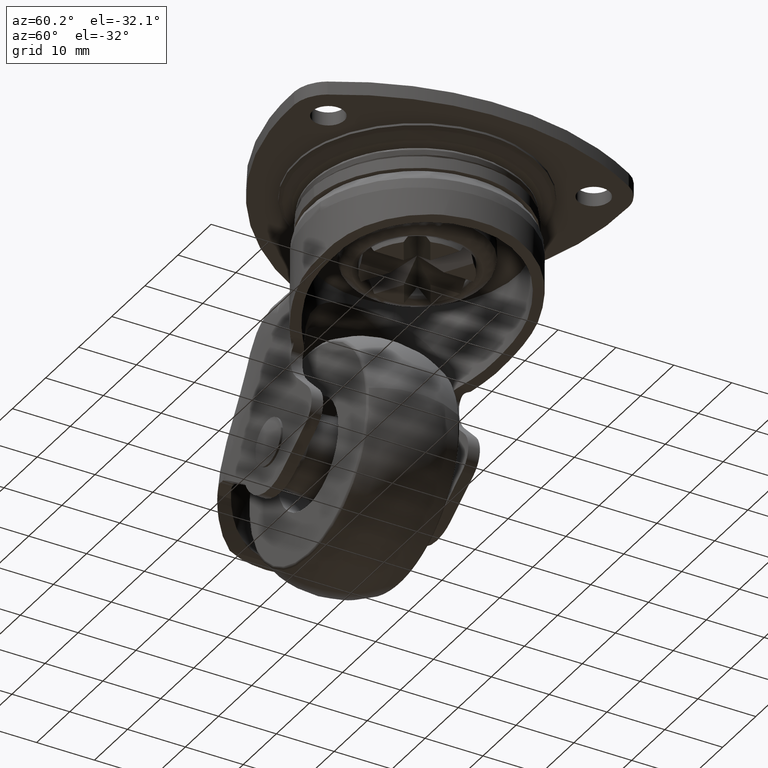
[diagram: clean part render]
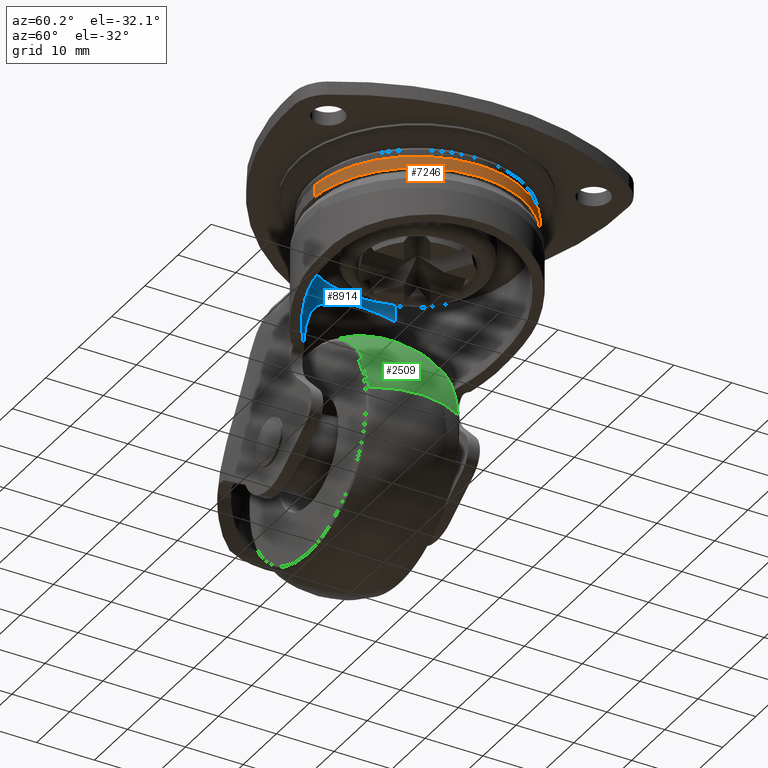
[diagram: same view with three faces highlighted in distinct colors, each labeled with its STEP entity id]
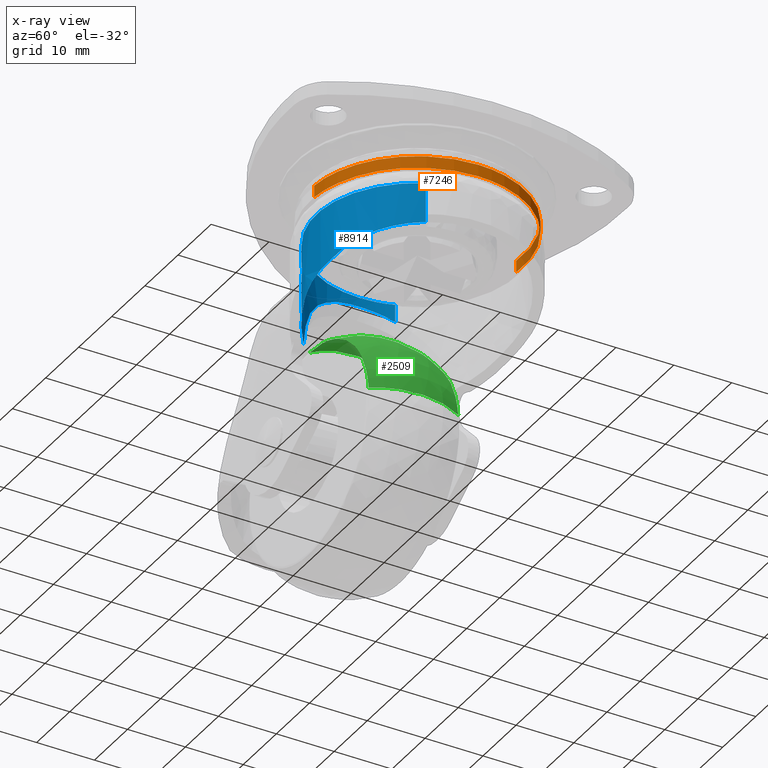
[diagram: x-ray of the same camera — body ghosted, the three highlighted faces saturated]
A machine part, auxiliary view with three faces highlighted in distinct colors.
The next image is the same camera in x-ray (body ghosted, the three faces saturated) — at least one of them is partly hidden behind the body in this view.
Their STEP definitions:

[orange] entity #7246 — the highlighted face is a freeform B-spline surface patch.
#7144=CARTESIAN_POINT('',(-2.183633341150032,18.370676237727821,-6.649104049999998));
#7145=CARTESIAN_POINT('',(-1.657872479802587,18.433170885799196,-6.649104049999998));
#7146=CARTESIAN_POINT('',(-1.129397981394854,18.465493770804532,-6.649104049999998));
#7147=CARTESIAN_POINT('',(17.336095789409679,19.594891752199391,-6.649104049999997));
#7148=CARTESIAN_POINT('',(18.465493770804532,1.129397981394854,-6.649104049999998));
#7149=CARTESIAN_POINT('',(19.594891752199391,-17.336095789409679,-6.649104049999997));
#7150=CARTESIAN_POINT('',(1.129397981394854,-18.465493770804532,-6.649104049999998));
#7151=CARTESIAN_POINT('',(-2.183633341150032,18.370676237727821,-8.809018848750007));
#7152=CARTESIAN_POINT('',(-1.657872479802587,18.433170885799196,-8.809018848750004));
#7153=CARTESIAN_POINT('',(-1.129397981394854,18.465493770804532,-8.809018848750004));
#7154=CARTESIAN_POINT('',(17.336095789409679,19.594891752199391,-8.809018848750004));
#7155=CARTESIAN_POINT('',(18.465493770804532,1.129397981394854,-8.809018848750004));
#7156=CARTESIAN_POINT('',(19.594891752199391,-17.336095789409679,-8.809018848750004));
#7157=CARTESIAN_POINT('',(1.129397981394854,-18.465493770804532,-8.809018848750004));
#7165=(BOUNDED_SURFACE()B_SPLINE_SURFACE(2,1,((#7144,#7151),(#7145,#7152),(#7146,#7153),(#7147,#7154),(#7148,#7155),(#7149,#7156),(#7150,#7157)),.UNSPECIFIED.,.F.,.F.,.U.)B_SPLINE_SURFACE_WITH_KNOTS((3,2,2,3),(2,2),(0.0,1.226072144624363,31.877875760233390,62.529679375842413),(0.0,2.159914798750008),.UNSPECIFIED.)GEOMETRIC_REPRESENTATION_ITEM()RATIONAL_B_SPLINE_SURFACE(((0.977505800795127,0.977505800795127),(0.988284271247462,0.988284271247462),(1.0,1.0),(0.707106781186548,0.707106781186548),(1.0,1.0),(0.707106781186548,0.707106781186548),(1.0,1.0)))REPRESENTATION_ITEM('')SURFACE());
#7166=CARTESIAN_POINT('',(-2.183615724292389,18.370678331741271,-8.756338000000817));
#7167=VERTEX_POINT('',#7166);
#7168=CARTESIAN_POINT('',(18.500000000000000,0.0,-8.756338000000001));
#7169=VERTEX_POINT('',#7168);
#7170=CARTESIAN_POINT('',(-2.183615724292389,18.370678331741271,-8.756338000000817));
#7171=CARTESIAN_POINT('',(-1.095637312011198,18.500000000000000,-8.756338000000001));
#7172=CARTESIAN_POINT('',(0.0,18.500000000000000,-8.756338000000001));
#7173=CARTESIAN_POINT('',(18.500000000000000,18.500000000000000,-8.756338000000001));
#7174=CARTESIAN_POINT('',(18.500000000000000,0.0,-8.756338000000001));
#7182=(BOUNDED_CURVE()B_SPLINE_CURVE(2,(#7170,#7171,#7172,#7173,#7174),.UNSPECIFIED.,.F.,.U.)B_SPLINE_CURVE_WITH_KNOTS((3,2,3),(0.229562635584058,0.250000000000000,0.500000000000000),.UNSPECIFIED.)CURVE()GEOMETRIC_REPRESENTATION_ITEM()RATIONAL_B_SPLINE_CURVE((0.956027071848855,0.976056138208605,1.0,0.707106781186548,1.0))REPRESENTATION_ITEM(''));
#7183=EDGE_CURVE('',#7167,#7169,#7182,.T.);
#7184=ORIENTED_EDGE('',*,*,#7183,.F.);
#7185=CARTESIAN_POINT('',(-2.183615941798902,18.370678305887740,-6.700500000000000));
#7186=VERTEX_POINT('',#7185);
#7187=CARTESIAN_POINT('',(-2.183615941798902,18.370678305887740,-6.700500000000000));
#7188=CARTESIAN_POINT('',(-2.183615724292389,18.370678331741271,-8.756338000000817));
#7189=QUASI_UNIFORM_CURVE('',1,(#7187,#7188),.UNSPECIFIED.,.F.,.U.);
#7190=EDGE_CURVE('',#7186,#7167,#7189,.T.);
#7191=ORIENTED_EDGE('',*,*,#7190,.F.);
#7192=CARTESIAN_POINT('',(18.500000000000000,0.0,-6.700500000000000));
#7193=VERTEX_POINT('',#7192);
#7194=CARTESIAN_POINT('',(-2.183615941798902,18.370678305887740,-6.700500000000000));
#7195=CARTESIAN_POINT('',(-1.095637421914148,18.499999999999996,-6.700500000000000));
#7196=CARTESIAN_POINT('',(0.0,18.500000000000000,-6.700500000000000));
#7197=CARTESIAN_POINT('',(18.500000000000000,18.500000000000000,-6.700499999999999));
#7198=CARTESIAN_POINT('',(18.500000000000000,0.0,-6.700500000000000));
#7206=(BOUNDED_CURVE()B_SPLINE_CURVE(2,(#7194,#7195,#7196,#7197,#7198),.UNSPECIFIED.,.F.,.U.)B_SPLINE_CURVE_WITH_KNOTS((3,2,3),(0.229562633583080,0.250000000000000,0.500000000000000),.UNSPECIFIED.)CURVE()GEOMETRIC_REPRESENTATION_ITEM()RATIONAL_B_SPLINE_CURVE((0.956027067926851,0.976056135864314,1.0,0.707106781186548,1.0))REPRESENTATION_ITEM(''));
#7207=EDGE_CURVE('',#7186,#7193,#7206,.T.);
#7208=ORIENTED_EDGE('',*,*,#7207,.T.);
#7209=CARTESIAN_POINT('',(1.129380879577222,-18.465494816780609,-6.700500000000000));
#7210=VERTEX_POINT('',#7209);
#7211=CARTESIAN_POINT('',(18.500000000000000,0.0,-6.700500000000000));
#7212=CARTESIAN_POINT('',(18.500000000000000,-17.403078385727326,-6.700499999999999));
#7213=CARTESIAN_POINT('',(1.129380879577221,-18.465494816780613,-6.700500000000000));
#7221=(BOUNDED_CURVE()B_SPLINE_CURVE(2,(#7211,#7212,#7213),.UNSPECIFIED.,.F.,.U.)B_SPLINE_CURVE_WITH_KNOTS((3,3),(0.500000000000000,0.739333122046202),.UNSPECIFIED.)CURVE()GEOMETRIC_REPRESENTATION_ITEM()RATIONAL_B_SPLINE_CURVE((1.0,0.719603806060860,0.976072384164334))REPRESENTATION_ITEM(''));
#7222=EDGE_CURVE('',#7193,#7210,#7221,.T.);
#7223=ORIENTED_EDGE('',*,*,#7222,.T.);
#7224=CARTESIAN_POINT('',(1.129380666103359,-18.465494829836839,-8.756337999999232));
#7225=VERTEX_POINT('',#7224);
#7226=CARTESIAN_POINT('',(1.129380879577222,-18.465494816780609,-6.700500000000000));
#7227=CARTESIAN_POINT('',(1.129380666103359,-18.465494829836839,-8.756337999999232));
#7228=QUASI_UNIFORM_CURVE('',1,(#7226,#7227),.UNSPECIFIED.,.F.,.U.);
#7229=EDGE_CURVE('',#7210,#7225,#7228,.T.);
#7230=ORIENTED_EDGE('',*,*,#7229,.T.);
#7231=CARTESIAN_POINT('',(18.500000000000000,0.0,-8.756338000000001));
#7232=CARTESIAN_POINT('',(18.500000000000007,-17.403078587294853,-8.756338000000003));
#7233=CARTESIAN_POINT('',(1.129380666103359,-18.465494829836832,-8.756337999999232));
#7241=(BOUNDED_CURVE()B_SPLINE_CURVE(2,(#7231,#7232,#7233),.UNSPECIFIED.,.F.,.U.)B_SPLINE_CURVE_WITH_KNOTS((3,3),(0.500000000000000,0.739333124040963),.UNSPECIFIED.)CURVE()GEOMETRIC_REPRESENTATION_ITEM()RATIONAL_B_SPLINE_CURVE((1.0,0.719603803723853,0.976072388439492))REPRESENTATION_ITEM(''));
#7242=EDGE_CURVE('',#7169,#7225,#7241,.T.);
#7243=ORIENTED_EDGE('',*,*,#7242,.F.);
#7244=EDGE_LOOP('',(#7184,#7191,#7208,#7223,#7230,#7243));
#7245=FACE_OUTER_BOUND('',#7244,.T.);
#7246=ADVANCED_FACE('',(#7245),#7165,.T.);

[blue] entity #8914 — the highlighted face is a freeform B-spline surface patch.
#8462=CARTESIAN_POINT('',(-16.438563581971302,5.618435099719518,-13.756746465194340));
#8463=VERTEX_POINT('',#8462);
#8590=CARTESIAN_POINT('',(15.679886700552959,-7.478918026366475,-17.624665072809151));
#8591=VERTEX_POINT('',#8590);
#8633=CARTESIAN_POINT('',(15.679890345803759,-7.478911289378994,-10.756337999999980));
#8634=VERTEX_POINT('',#8633);
#8635=CARTESIAN_POINT('',(15.679890345803759,-7.478911289378994,-10.756337999999980));
#8636=CARTESIAN_POINT('',(15.679886700552959,-7.478918026366475,-17.624665072809151));
#8637=QUASI_UNIFORM_CURVE('',1,(#8635,#8636),.UNSPECIFIED.,.F.,.U.);
#8638=EDGE_CURVE('',#8634,#8591,#8637,.T.);
#8655=CARTESIAN_POINT('',(-16.438562554967341,5.618428290665593,-10.756337999999980));
#8656=VERTEX_POINT('',#8655);
#8672=CARTESIAN_POINT('',(-16.438562554967341,5.618428290665593,-10.756337999999980));
#8673=CARTESIAN_POINT('',(-16.438563581971302,5.618435099719518,-13.756746465194340));
#8674=QUASI_UNIFORM_CURVE('',1,(#8672,#8673),.UNSPECIFIED.,.F.,.U.);
#8675=EDGE_CURVE('',#8656,#8463,#8674,.T.);
#8680=CARTESIAN_POINT('',(15.679885387246580,-7.478921685228040,-10.370579294695430));
#8681=CARTESIAN_POINT('',(8.200963702018541,-23.158807072474630,-10.370579294695430));
#8682=CARTESIAN_POINT('',(-7.478921685228040,-15.679885387246580,-10.370579294695430));
#8683=CARTESIAN_POINT('',(-21.441729492488797,-9.019967695416353,-10.370579294695430));
#8684=CARTESIAN_POINT('',(-16.438560578550561,5.618434073323876,-10.370579294695430));
#8685=CARTESIAN_POINT('',(15.679885387246580,-7.478921685228040,-26.582088885119060));
#8686=CARTESIAN_POINT('',(8.200963702018541,-23.158807072474630,-26.582088885119056));
#8687=CARTESIAN_POINT('',(-7.478921685228040,-15.679885387246580,-26.582088885119060));
#8688=CARTESIAN_POINT('',(-21.441729492488797,-9.019967695416353,-26.582088885119063));
#8689=CARTESIAN_POINT('',(-16.438560578550561,5.618434073323876,-26.582088885119060));
#8697=(BOUNDED_SURFACE()B_SPLINE_SURFACE(2,1,((#8680,#8685),(#8681,#8686),(#8682,#8687),(#8683,#8688),(#8684,#8689)),.UNSPECIFIED.,.F.,.F.,.U.)B_SPLINE_SURFACE_WITH_KNOTS((3,2,3),(2,2),(0.0,28.783191113209941,55.263726937363082),(0.0,16.211509590423638),.UNSPECIFIED.)GEOMETRIC_REPRESENTATION_ITEM()RATIONAL_B_SPLINE_SURFACE(((1.0,1.0),(0.707106781186548,0.707106781186548),(1.0,1.0),(0.730538238691624,0.730538238691624),(0.956886118190660,0.956886118190660)))REPRESENTATION_ITEM('')SURFACE());
#8698=CARTESIAN_POINT('',(-11.462223214484739,-13.054137823398760,-26.186686212181900));
#8699=VERTEX_POINT('',#8698);
#8700=CARTESIAN_POINT('',(-11.462223214484739,-13.054137823398760,-26.186686212181900));
#8701=CARTESIAN_POINT('',(-11.529242868406390,-12.995291002368591,-25.737962508717139));
#8702=CARTESIAN_POINT('',(-11.609231764429760,-12.924171375894590,-25.293603520474289));
#8703=CARTESIAN_POINT('',(-11.746792368308000,-12.798819894264881,-24.633313339671449));
#8704=CARTESIAN_POINT('',(-11.795538716116489,-12.753950693627070,-24.414476881740640));
#8705=CARTESIAN_POINT('',(-11.898134297940810,-12.658293384951000,-23.980650415326259));
#8706=CARTESIAN_POINT('',(-11.952026161978260,-12.607466573950690,-23.765452300651120));
#8707=CARTESIAN_POINT('',(-12.120940140374049,-12.445889473300831,-23.124869857879791));
#8708=CARTESIAN_POINT('',(-12.243192443898209,-12.326066317192749,-22.704487578170681));
#8709=CARTESIAN_POINT('',(-12.504323531515050,-12.061076372899510,-21.876611832389781));
#8710=CARTESIAN_POINT('',(-12.643206081326291,-11.915910888415960,-21.469119105978379));
#8711=CARTESIAN_POINT('',(-12.862174831125150,-11.677720467225390,-20.867436541004398));
#8712=CARTESIAN_POINT('',(-12.936939926724181,-11.594910443065681,-20.668470766075561));
#8713=CARTESIAN_POINT('',(-13.089727849589760,-11.422144566407400,-20.273739177815830));
#8714=CARTESIAN_POINT('',(-13.167508374016171,-11.332458089620181,-20.078608503208859));
#8715=CARTESIAN_POINT('',(-13.403797959919830,-11.053983075937531,-19.501475517798831));
#8716=CARTESIAN_POINT('',(-13.565521074523620,-10.855494959354351,-19.127017252982458));
#8717=CARTESIAN_POINT('',(-13.894477845030670,-10.431136817755940,-18.398452836553702));
#8718=CARTESIAN_POINT('',(-14.061716520881070,-10.205271854985680,-18.044345748345091));
#8719=CARTESIAN_POINT('',(-14.398897196267329,-9.723744201806753,-17.356738036199811));
#8720=CARTESIAN_POINT('',(-14.568845081503721,-9.468091607883549,-17.023233613157899));
#8721=CARTESIAN_POINT('',(-14.823618579872351,-9.059752660308954,-16.539043934553160));
#8722=CARTESIAN_POINT('',(-14.908517097137761,-8.919488138528347,-16.380329931303180));
#8723=CARTESIAN_POINT('',(-15.077873156199070,-8.630115278349960,-16.068435973739181));
#8724=CARTESIAN_POINT('',(-15.161922318833509,-8.481691895017026,-15.916011196208210));
#8725=CARTESIAN_POINT('',(-15.410836224721780,-8.026140896856228,-15.470711731845130));
#8726=CARTESIAN_POINT('',(-15.572790149853020,-7.708226204155214,-15.189203016698681));
#8727=CARTESIAN_POINT('',(-15.885335924781840,-7.041636321362147,-14.657828677587800));
#8728=CARTESIAN_POINT('',(-16.035938731685039,-6.692975415528137,-14.407951672493770));
#8729=CARTESIAN_POINT('',(-16.214727683304829,-6.235805645173444,-14.116639561173271));
#8730=CARTESIAN_POINT('',(-16.250010732683521,-6.143301195879148,-14.059432085866799));
#8731=CARTESIAN_POINT('',(-16.319560934362730,-5.956083276177948,-13.947172934361300));
#8732=CARTESIAN_POINT('',(-16.353832763869310,-5.861350000792931,-13.892114360278191));
#8733=CARTESIAN_POINT('',(-16.454617812709088,-5.574904197777166,-13.730890059640551));
#8734=CARTESIAN_POINT('',(-16.519241916708800,-5.380578143886179,-13.628445598606390));
#8735=CARTESIAN_POINT('',(-16.642903849209450,-4.984949689193016,-13.433845188603390));
#8736=CARTESIAN_POINT('',(-16.701971339498229,-4.783540348544103,-13.341643407503209));
#8737=CARTESIAN_POINT('',(-16.813901733525139,-4.373878211072979,-13.168034238234069));
#8738=CARTESIAN_POINT('',(-16.919216708582859,-3.958898475982338,-13.005853561870341));
#8739=CARTESIAN_POINT('',(-17.010556880834081,-3.533025900459922,-12.866806643479210));
#8740=CARTESIAN_POINT('',(-17.073512006505759,-3.209403602656487,-12.771388426669979));
#8741=CARTESIAN_POINT('',(-17.093571700711450,-3.100826128262325,-12.741061133584351));
#8742=CARTESIAN_POINT('',(-17.131784036303198,-2.882237063910917,-12.683408324577609));
#8743=CARTESIAN_POINT('',(-17.149941175370060,-2.772171845438788,-12.656076224190020));
#8744=CARTESIAN_POINT('',(-17.235312639109601,-2.221630922636045,-12.527797204540031));
#8745=CARTESIAN_POINT('',(-17.286792718026319,-1.777874801725244,-12.451177924562851));
#8746=CARTESIAN_POINT('',(-17.355489584740720,-0.883751809870909,-12.349122387115960));
#8747=CARTESIAN_POINT('',(-17.372710498911239,-0.433385509112264,-12.323682498894920));
#8748=CARTESIAN_POINT('',(-17.371911895558270,0.247262807970309,-12.324864401803829));
#8749=CARTESIAN_POINT('',(-17.367202153132940,0.474997186010921,-12.331831957710550));
#8750=CARTESIAN_POINT('',(-17.353302011683891,0.817911565142100,-12.352426670284830));
#8751=CARTESIAN_POINT('',(-17.347525159659121,0.932374061379429,-12.360989057060671));
#8752=CARTESIAN_POINT('',(-17.333811103900921,1.159716362510927,-12.381333553423289));
#8753=CARTESIAN_POINT('',(-17.325864961114011,1.272849269341193,-12.393128910716440));
#8754=CARTESIAN_POINT('',(-17.280819180449690,1.835877304710902,-12.460069310742140));
#8755=CARTESIAN_POINT('',(-17.227807098991999,2.277888079743335,-12.539017395825359));
#8756=CARTESIAN_POINT('',(-17.090595136337551,3.146055605159412,-12.745312241962340));
#8757=CARTESIAN_POINT('',(-17.006385154988308,3.572207920591037,-12.872671632368570));
#8758=CARTESIAN_POINT('',(-16.882935690769131,4.095241603713753,-13.061885774620791));
#8759=CARTESIAN_POINT('',(-16.857335243538270,4.199364303674790,-13.101233780394590));
#8760=CARTESIAN_POINT('',(-16.804341859462280,4.406643404525686,-13.182951342943120));
#8761=CARTESIAN_POINT('',(-16.776970264821731,4.509700513917641,-13.225288646472251));
#8762=CARTESIAN_POINT('',(-16.692833098928460,4.815281774001521,-13.355883873869910));
#8763=CARTESIAN_POINT('',(-16.633867406871069,5.014932944221296,-13.447997974372960));
#8764=CARTESIAN_POINT('',(-16.528979855550929,5.348518503976549,-13.613174545655120));
#8765=CARTESIAN_POINT('',(-16.484373376735920,5.484397774860550,-13.683787506150111));
#8766=CARTESIAN_POINT('',(-16.438563581971302,5.618435099719518,-13.756746465194340));
#8767=B_SPLINE_CURVE_WITH_KNOTS('',3,(#8700,#8701,#8702,#8703,#8704,#8705,#8706,#8707,#8708,#8709,#8710,#8711,#8712,#8713,#8714,#8715,#8716,#8717,#8718,#8719,#8720,#8721,#8722,#8723,#8724,#8725,#8726,#8727,#8728,#8729,#8730,#8731,#8732,#8733,#8734,#8735,#8736,#8737,#8738,#8739,#8740,#8741,#8742,#8743,#8744,#8745,#8746,#8747,#8748,#8749,#8750,#8751,#8752,#8753,#8754,#8755,#8756,#8757,#8758,#8759,#8760,#8761,#8762,#8763,#8764,#8765,#8766),.UNSPECIFIED.,.F.,.U.,(4,2,2,2,2,2,2,2,2,2,2,2,2,2,2,2,2,2,2,1,2,2,2,2,2,2,2,2,2,2,2,2,2,4),(0.0,0.031249999999999,0.046874999999999,0.062499999999998,0.093749999999998,0.124999999999997,0.140624999999997,0.156249999999997,0.187499999999997,0.218749999999996,0.249999999999996,0.265624999999996,0.281249999999996,0.312499999999995,0.343749999999995,0.351562499999995,0.359374999999995,0.374999999999996,0.390624999999996,0.406249999999996,0.421874999999996,0.429687499999997,0.437499999999997,0.468749999999997,0.499999999999998,0.515624999999998,0.523437499999998,0.531249999999998,0.562499999999998,0.593749999999999,0.601562499999999,0.609374999999999,0.624999999999999,0.635994431743277),.UNSPECIFIED.);
#8768=EDGE_CURVE('',#8699,#8463,#8767,.T.);
#8769=ORIENTED_EDGE('',*,*,#8768,.T.);
#8770=ORIENTED_EDGE('',*,*,#8675,.F.);
#8771=CARTESIAN_POINT('',(-17.372192588472050,0.0,-10.756337999999980));
#8772=VERTEX_POINT('',#8771);
#8773=CARTESIAN_POINT('',(-17.372192588472050,0.0,-10.756337999999980));
#8774=CARTESIAN_POINT('',(-17.372192588472057,2.886786109801061,-10.756337999999982));
#8775=CARTESIAN_POINT('',(-16.438562554967337,5.618428290665593,-10.756337999999982));
#8783=(BOUNDED_CURVE()B_SPLINE_CURVE(2,(#8773,#8774,#8775),.UNSPECIFIED.,.F.,.U.)B_SPLINE_CURVE_WITH_KNOTS((3,3),(0.500000000000000,0.554967492188971),.UNSPECIFIED.)CURVE()GEOMETRIC_REPRESENTATION_ITEM()RATIONAL_B_SPLINE_CURVE((1.0,0.935601577130676,0.899521712709764))REPRESENTATION_ITEM(''));
#8784=EDGE_CURVE('',#8772,#8656,#8783,.T.);
#8785=ORIENTED_EDGE('',*,*,#8784,.F.);
#8786=CARTESIAN_POINT('',(15.679890345803765,-7.478911289378994,-10.756337999999984));
#8787=CARTESIAN_POINT('',(10.961045279612071,-17.372192588472053,-10.756337999999980));
#8788=CARTESIAN_POINT('',(0.0,-17.372192588472050,-10.756337999999980));
#8789=CARTESIAN_POINT('',(-17.372192588472053,-17.372192588472053,-10.756337999999982));
#8790=CARTESIAN_POINT('',(-17.372192588472050,0.0,-10.756337999999980));
#8798=(BOUNDED_CURVE()B_SPLINE_CURVE(2,(#8786,#8787,#8788,#8789,#8790),.UNSPECIFIED.,.F.,.U.)B_SPLINE_CURVE_WITH_KNOTS((3,2,3),(0.073145176869554,0.250000000000000,0.500000000000000),.UNSPECIFIED.)CURVE()GEOMETRIC_REPRESENTATION_ITEM()RATIONAL_B_SPLINE_CURVE((0.878755541615329,0.792801686362559,1.0,0.707106781186548,1.0))REPRESENTATION_ITEM(''));
#8799=EDGE_CURVE('',#8634,#8772,#8798,.T.);
#8800=ORIENTED_EDGE('',*,*,#8799,.F.);
#8801=ORIENTED_EDGE('',*,*,#8638,.T.);
#8802=CARTESIAN_POINT('',(11.210520508588299,-13.270919533230700,-18.424408352251199));
#8803=VERTEX_POINT('',#8802);
#8804=CARTESIAN_POINT('',(11.210520508588299,-13.270919533230700,-18.424408352251199));
#8805=CARTESIAN_POINT('',(11.448846895982740,-13.069594909530540,-18.377617523436701));
#8806=CARTESIAN_POINT('',(11.682613177590291,-12.861129881748550,-18.332388772744210));
#8807=CARTESIAN_POINT('',(12.026223699871259,-12.537455010566569,-18.266810911720938));
#8808=CARTESIAN_POINT('',(12.139764805292440,-12.427552198739120,-18.245295960288939));
#8809=CARTESIAN_POINT('',(12.363367024560119,-12.205125931190620,-18.203214634085651));
#8810=CARTESIAN_POINT('',(12.473443345808260,-12.092600460820140,-18.182644716376011));
#8811=CARTESIAN_POINT('',(13.015284148124801,-11.523482350269550,-18.082066073221039));
#8812=CARTESIAN_POINT('',(13.421499587187760,-11.047473704102110,-18.008846668539999));
#8813=CARTESIAN_POINT('',(14.180337599063270,-10.054916806632530,-17.875173542525300));
#8814=CARTESIAN_POINT('',(14.532959982319641,-9.538368043224201,-17.814722756126379));
#8815=CARTESIAN_POINT('',(15.021008824871460,-8.732751460752937,-17.732740728106030));
#8816=CARTESIAN_POINT('',(15.176863404475640,-8.459069515470677,-17.706866343316559));
#8817=CARTESIAN_POINT('',(15.400179740312570,-8.040679724420563,-17.670158587392748));
#8818=CARTESIAN_POINT('',(15.472873265607429,-7.899904560096170,-17.658273546465590));
#8819=CARTESIAN_POINT('',(15.590000212517531,-7.665224955604562,-17.639217387106061));
#8820=CARTESIAN_POINT('',(15.635385899104390,-7.572213994470894,-17.631857969293570));
#8821=CARTESIAN_POINT('',(15.679886700552959,-7.478918026366475,-17.624665072809151));
#8822=B_SPLINE_CURVE_WITH_KNOTS('',3,(#8804,#8805,#8806,#8807,#8808,#8809,#8810,#8811,#8812,#8813,#8814,#8815,#8816,#8817,#8818,#8819,#8820,#8821),.UNSPECIFIED.,.F.,.U.,(4,2,2,2,2,2,2,2,4),(0.0,0.031250000000000,0.046875000000000,0.062500000000000,0.125000000000000,0.187499999999999,0.218749999999999,0.234374999999999,0.244554025565073),.UNSPECIFIED.);
#8823=EDGE_CURVE('',#8803,#8591,#8822,.T.);
#8824=ORIENTED_EDGE('',*,*,#8823,.F.);
#8825=CARTESIAN_POINT('',(3.662010262553715,-16.981836065865050,-20.641823778849300));
#8826=VERTEX_POINT('',#8825);
#8827=CARTESIAN_POINT('',(3.662010262553715,-16.981836065865050,-20.641823778849300));
#8828=CARTESIAN_POINT('',(3.889937204085352,-16.932685243631731,-20.551428814909858));
#8829=CARTESIAN_POINT('',(4.118473761750950,-16.878598968930159,-20.463056131735971));
#8830=CARTESIAN_POINT('',(4.576110325399271,-16.760314490150559,-20.290572196335368));
#8831=CARTESIAN_POINT('',(4.803653068911375,-16.696522255596250,-20.207045558625200));
#8832=CARTESIAN_POINT('',(5.482368121021960,-16.491215144441330,-19.964297331328670));
#8833=CARTESIAN_POINT('',(5.929633940203702,-16.335788204334190,-19.812902174902302));
#8834=CARTESIAN_POINT('',(7.254875679187955,-15.813339739409679,-19.387732054664390));
#8835=CARTESIAN_POINT('',(8.116437945783126,-15.390497471930070,-19.142924401267461));
#8836=CARTESIAN_POINT('',(9.161070859908239,-14.762359682945240,-18.878585218556321));
#8837=CARTESIAN_POINT('',(9.368370259243237,-14.631725450487931,-18.827804845889830));
#8838=CARTESIAN_POINT('',(9.676749144669303,-14.428054225964861,-18.754651256794752));
#8839=CARTESIAN_POINT('',(9.779246892920853,-14.358782484389890,-18.730739488289519));
#8840=CARTESIAN_POINT('',(9.982438197870948,-14.218271016840241,-18.684112793756881));
#8841=CARTESIAN_POINT('',(10.083180800580360,-14.147003626638030,-18.661385028496770));
#8842=CARTESIAN_POINT('',(10.536163495272900,-13.819270403780321,-18.560877367807471));
#8843=CARTESIAN_POINT('',(10.878644655173931,-13.551275627543180,-18.489564967612811));
#8844=CARTESIAN_POINT('',(11.210520508588299,-13.270919533230700,-18.424408352251199));
#8845=B_SPLINE_CURVE_WITH_KNOTS('',3,(#8827,#8828,#8829,#8830,#8831,#8832,#8833,#8834,#8835,#8836,#8837,#8838,#8839,#8840,#8841,#8842,#8843,#8844),.UNSPECIFIED.,.F.,.U.,(4,2,2,2,2,2,2,2,4),(0.0,0.015625000000000,0.031250000000000,0.062499999999999,0.124999999999999,0.140624999999999,0.148437499999999,0.156249999999999,0.183864964177190),.UNSPECIFIED.);
#8846=EDGE_CURVE('',#8826,#8803,#8845,.T.);
#8847=ORIENTED_EDGE('',*,*,#8846,.F.);
#8848=CARTESIAN_POINT('',(-1.330543638160180,-17.321164191760150,-21.891081822252950));
#8849=VERTEX_POINT('',#8848);
#8850=CARTESIAN_POINT('',(-1.330543638160180,-17.321164191760150,-21.891081822252950));
#8851=CARTESIAN_POINT('',(-0.495383261917997,-17.385317923795611,-21.662346117325139));
#8852=CARTESIAN_POINT('',(0.338273691768403,-17.388911858494321,-21.444051588948710));
#8853=CARTESIAN_POINT('',(2.002547658991313,-17.276529963696280,-21.027791654551010));
#8854=CARTESIAN_POINT('',(2.833166172138724,-17.160570305989879,-20.829827848705591));
#8855=CARTESIAN_POINT('',(3.662010262553716,-16.981836065865050,-20.641823778849300));
#8856=B_SPLINE_CURVE_WITH_KNOTS('',3,(#8850,#8851,#8852,#8853,#8854,#8855),.UNSPECIFIED.,.F.,.U.,(4,2,4),(0.0,0.500000000000000,1.0),.UNSPECIFIED.);
#8857=EDGE_CURVE('',#8849,#8826,#8856,.T.);
#8858=ORIENTED_EDGE('',*,*,#8857,.F.);
#8859=CARTESIAN_POINT('',(-7.254292758008381,-15.785066104140050,-24.160374041638100));
#8860=VERTEX_POINT('',#8859);
#8861=CARTESIAN_POINT('',(-7.254292758008381,-15.785066104140050,-24.160374041638100));
#8862=CARTESIAN_POINT('',(-6.645248476413873,-16.064962650363430,-23.855316366140599));
#8863=CARTESIAN_POINT('',(-6.019645636616099,-16.309939919431990,-23.566070805644880));
#8864=CARTESIAN_POINT('',(-4.733716420109264,-16.728484767602239,-23.022056536504831));
#8865=CARTESIAN_POINT('',(-4.073400369605925,-16.902069536677260,-22.767274637982052));
#8866=CARTESIAN_POINT('',(-3.054762865280947,-17.105009986362699,-22.413415008049231));
#8867=CARTESIAN_POINT('',(-2.710512618571161,-17.163054461891420,-22.300185330235710));
#8868=CARTESIAN_POINT('',(-2.186700322362124,-17.234920292177879,-22.137792641413320));
#8869=CARTESIAN_POINT('',(-2.010855846825964,-17.256339703222149,-22.084904195109932));
#8870=CARTESIAN_POINT('',(-1.666914207784578,-17.292848653429601,-21.984682140337320));
#8871=CARTESIAN_POINT('',(-1.498674996162874,-17.308247166017829,-21.937131159937611));
#8872=CARTESIAN_POINT('',(-1.330543638160180,-17.321164191760150,-21.891081822252950));
#8873=B_SPLINE_CURVE_WITH_KNOTS('',3,(#8861,#8862,#8863,#8864,#8865,#8866,#8867,#8868,#8869,#8870,#8871,#8872),.UNSPECIFIED.,.F.,.U.,(4,2,2,2,2,4),(0.0,0.031250000000000,0.062500000000000,0.078125000000000,0.085937500000000,0.093295543069252),.UNSPECIFIED.);
#8874=EDGE_CURVE('',#8860,#8849,#8873,.T.);
#8875=ORIENTED_EDGE('',*,*,#8874,.F.);
#8876=CARTESIAN_POINT('',(-9.279156353359650,-14.686399582636840,-25.046018961274651));
#8877=VERTEX_POINT('',#8876);
#8878=CARTESIAN_POINT('',(-7.254292758008370,-15.785066104140030,-24.160374041638100));
#8879=CARTESIAN_POINT('',(-7.423956605912607,-15.707094227745751,-24.245355194931960));
#8880=CARTESIAN_POINT('',(-7.678870703088406,-15.584976013994179,-24.368771450582710));
#8881=CARTESIAN_POINT('',(-7.934226776202624,-15.454783605763801,-24.486205562267720));
#8882=CARTESIAN_POINT('',(-8.104540960065311,-15.366154582842769,-24.563176424264491));
#8883=CARTESIAN_POINT('',(-8.189812086864462,-15.320880413897180,-24.601034291828832));
#8884=CARTESIAN_POINT('',(-8.614313623805703,-15.090919442753441,-24.786198280248211));
#8885=CARTESIAN_POINT('',(-8.949305306721586,-14.894805966914239,-24.921757844582459));
#8886=CARTESIAN_POINT('',(-9.279156353359650,-14.686399582636840,-25.046018961274651));
#8887=B_SPLINE_CURVE_WITH_KNOTS('',3,(#8878,#8879,#8880,#8881,#8882,#8883,#8884,#8885,#8886),.UNSPECIFIED.,.F.,.U.,(4,1,2,2,4),(0.0,0.250000000000000,0.375000000000000,0.499999999999999,1.0),.UNSPECIFIED.);
#8888=EDGE_CURVE('',#8860,#8877,#8887,.T.);
#8889=ORIENTED_EDGE('',*,*,#8888,.T.);
#8890=CARTESIAN_POINT('',(-10.932813628958019,-13.500617077949920,-25.834034225924199));
#8891=VERTEX_POINT('',#8890);
#8892=CARTESIAN_POINT('',(-9.279156353359650,-14.686399582636840,-25.046018961274651));
#8893=CARTESIAN_POINT('',(-10.140768343539722,-14.142016166686092,-25.456601861665057));
#8894=CARTESIAN_POINT('',(-10.932813628958010,-13.500617077949929,-25.834034225924139));
#8902=(BOUNDED_CURVE()B_SPLINE_CURVE(2,(#8892,#8893,#8894),.UNSPECIFIED.,.F.,.U.)CURVE()GEOMETRIC_REPRESENTATION_ITEM()QUASI_UNIFORM_CURVE()RATIONAL_B_SPLINE_CURVE((1.0,0.998283501326786,1.0))REPRESENTATION_ITEM(''));
#8903=EDGE_CURVE('',#8877,#8891,#8902,.T.);
#8904=ORIENTED_EDGE('',*,*,#8903,.T.);
#8905=CARTESIAN_POINT('',(-11.462223214484750,-13.054137823398760,-26.186686212181879));
#8906=CARTESIAN_POINT('',(-11.294088684213881,-13.201768830677770,-26.055600339409480));
#8907=CARTESIAN_POINT('',(-11.117736158600611,-13.350866622788880,-25.938212693451369));
#8908=CARTESIAN_POINT('',(-10.932813628958019,-13.500617077949920,-25.834034225924210));
#8909=QUASI_UNIFORM_CURVE('',3,(#8905,#8906,#8907,#8908),.UNSPECIFIED.,.F.,.U.);
#8910=EDGE_CURVE('',#8699,#8891,#8909,.T.);
#8911=ORIENTED_EDGE('',*,*,#8910,.F.);
#8912=EDGE_LOOP('',(#8769,#8770,#8785,#8800,#8801,#8824,#8847,#8858,#8875,#8889,#8904,#8911));
#8913=FACE_OUTER_BOUND('',#8912,.T.);
#8914=ADVANCED_FACE('',(#8913),#8697,.F.);

[green] entity #2509 — the highlighted face is a freeform B-spline surface patch.
#1971=CARTESIAN_POINT('',(0.0,7.741957127476519,-21.997782324370629));
#1972=VERTEX_POINT('',#1971);
#1986=CARTESIAN_POINT('',(17.881824193208271,7.741935547322694,-37.921386432191142));
#1987=VERTEX_POINT('',#1986);
#1988=CARTESIAN_POINT('',(0.0,7.741957127476519,-21.997782324370629));
#1989=CARTESIAN_POINT('',(16.030836061831153,7.741946337399606,-21.997776358451983));
#1990=CARTESIAN_POINT('',(17.881824193208271,7.741935547322694,-37.921386432191142));
#1998=(BOUNDED_CURVE()B_SPLINE_CURVE(2,(#1988,#1989,#1990),.UNSPECIFIED.,.F.,.U.)B_SPLINE_CURVE_WITH_KNOTS((3,3),(0.0,0.229999999999810),.UNSPECIFIED.)CURVE()GEOMETRIC_REPRESENTATION_ITEM()RATIONAL_B_SPLINE_CURVE((1.0,0.730538238691846,0.956886118190286))REPRESENTATION_ITEM(''));
#1999=EDGE_CURVE('',#1972,#1987,#1998,.T.);
#2060=CARTESIAN_POINT('',(0.0,-7.741939943948433,-21.997772798119961));
#2061=VERTEX_POINT('',#2060);
#2124=CARTESIAN_POINT('',(15.665247426896141,-7.741936564494115,-31.129809447798369));
#2125=VERTEX_POINT('',#2124);
#2139=CARTESIAN_POINT('',(0.0,-7.741939943948433,-21.997772798119961));
#2140=CARTESIAN_POINT('',(10.494379527908935,-7.741938482388497,-21.997771989035783));
#2141=CARTESIAN_POINT('',(15.665247426896141,-7.741936564494115,-31.129809447798376));
#2149=(BOUNDED_CURVE()B_SPLINE_CURVE(2,(#2139,#2140,#2141),.UNSPECIFIED.,.F.,.U.)B_SPLINE_CURVE_WITH_KNOTS((3,3),(0.0,0.166016356811380),.UNSPECIFIED.)CURVE()GEOMETRIC_REPRESENTATION_ITEM()RATIONAL_B_SPLINE_CURVE((1.0,0.805499739511329,0.869321276184206))REPRESENTATION_ITEM(''));
#2150=EDGE_CURVE('',#2061,#2125,#2149,.T.);
#2193=CARTESIAN_POINT('',(17.881824247661068,-7.741935478695812,-37.921386425865101));
#2194=VERTEX_POINT('',#2193);
#2210=CARTESIAN_POINT('',(15.665247426896141,-7.741936564494115,-31.129809447798376));
#2211=CARTESIAN_POINT('',(17.461010604440851,-7.741935986273141,-34.301225783830695));
#2212=CARTESIAN_POINT('',(17.881824247661076,-7.741935478695813,-37.921386425865109));
#2220=(BOUNDED_CURVE()B_SPLINE_CURVE(2,(#2210,#2211,#2212),.UNSPECIFIED.,.F.,.U.)B_SPLINE_CURVE_WITH_KNOTS((3,3),(0.166016356811380,0.229999999999878),.UNSPECIFIED.)CURVE()GEOMETRIC_REPRESENTATION_ITEM()RATIONAL_B_SPLINE_CURVE((0.869321276184206,0.893918457502060,0.956886118190420))REPRESENTATION_ITEM(''));
#2221=EDGE_CURVE('',#2125,#2194,#2220,.T.);
#2450=CARTESIAN_POINT('',(17.881824193208278,7.741935547322694,-37.921386432191149));
#2451=CARTESIAN_POINT('',(22.133767149096187,0.000000049448459,-37.427133372663270));
#2452=CARTESIAN_POINT('',(17.881824247661072,-7.741935478695813,-37.921386425865101));
#2460=(BOUNDED_CURVE()B_SPLINE_CURVE(2,(#2450,#2451,#2452),.UNSPECIFIED.,.F.,.U.)B_SPLINE_CURVE_WITH_KNOTS((3,3),(0.362871079318848,0.637128919148161),.UNSPECIFIED.)CURVE()GEOMETRIC_REPRESENTATION_ITEM()RATIONAL_B_SPLINE_CURVE((0.929203502129415,0.813182549956654,0.929203500832395))REPRESENTATION_ITEM(''));
#2461=EDGE_CURVE('',#1987,#2194,#2460,.T.);
#2466=CARTESIAN_POINT('',(0.0,7.741957127476519,-21.997782324370625));
#2467=CARTESIAN_POINT('',(0.0,0.000011225336770,-17.717188018067752));
#2468=CARTESIAN_POINT('',(0.0,-7.741939943948433,-21.997772798119961));
#2476=(BOUNDED_CURVE()B_SPLINE_CURVE(2,(#2466,#2467,#2468),.UNSPECIFIED.,.F.,.U.)B_SPLINE_CURVE_WITH_KNOTS((3,3),(0.362870642543442,0.637129009451164),.UNSPECIFIED.)CURVE()GEOMETRIC_REPRESENTATION_ITEM()RATIONAL_B_SPLINE_CURVE((0.971070490008239,0.849821427570696,0.971070182303686))REPRESENTATION_ITEM(''));
#2477=EDGE_CURVE('',#1972,#2061,#2476,.T.);
#2485=CARTESIAN_POINT('',(0.0,8.405296508026964,-22.385632933839716));
#2486=CARTESIAN_POINT('',(0.0,0.000011710979316,-17.196342046479931));
#2487=CARTESIAN_POINT('',(0.0,-8.405279549876292,-22.385622464158288));
#2488=CARTESIAN_POINT('',(15.685447687735177,8.405296508026963,-22.385632933839709));
#2489=CARTESIAN_POINT('',(20.306468156105954,0.000011710979316,-17.196342046479934));
#2490=CARTESIAN_POINT('',(15.685457010899597,-8.405279549876294,-22.385622464158295));
#2491=CARTESIAN_POINT('',(17.496555816649646,8.405296508026964,-37.966170681621612));
#2492=CARTESIAN_POINT('',(22.651138852105483,0.000011710979316,-37.366993208558611));
#2493=CARTESIAN_POINT('',(17.496566216306061,-8.405279549876294,-37.966169472747922));
#2501=(BOUNDED_SURFACE()B_SPLINE_SURFACE(2,2,((#2485,#2488,#2491),(#2486,#2489,#2492),(#2487,#2490,#2493)),.UNSPECIFIED.,.F.,.F.,.U.)B_SPLINE_SURFACE_WITH_KNOTS((3,3),(3,3),(0.0,18.164775818489090),(0.0,30.452679126865611),.UNSPECIFIED.)GEOMETRIC_REPRESENTATION_ITEM()RATIONAL_B_SPLINE_SURFACE(((0.983788313102748,0.718694981499485,0.941373380046226),(0.837103624525098,0.611536207462939,0.801012837795153),(0.983787965300394,0.718694727416566,0.941373047238981)))REPRESENTATION_ITEM('')SURFACE());
#2502=ORIENTED_EDGE('',*,*,#1999,.F.);
#2503=ORIENTED_EDGE('',*,*,#2477,.T.);
#2504=ORIENTED_EDGE('',*,*,#2150,.T.);
#2505=ORIENTED_EDGE('',*,*,#2221,.T.);
#2506=ORIENTED_EDGE('',*,*,#2461,.F.);
#2507=EDGE_LOOP('',(#2502,#2503,#2504,#2505,#2506));
#2508=FACE_OUTER_BOUND('',#2507,.T.);
#2509=ADVANCED_FACE('',(#2508),#2501,.T.);